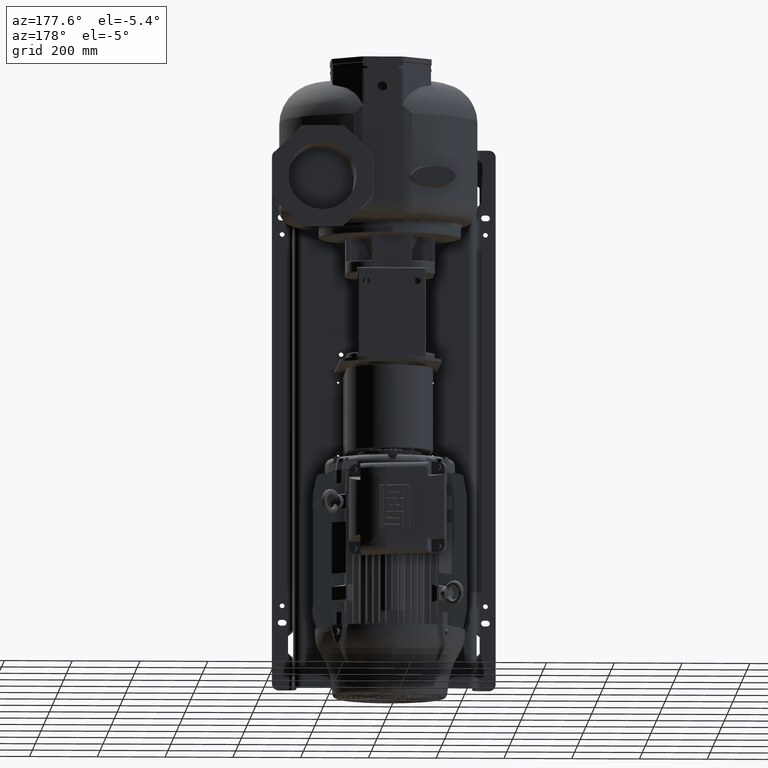
[diagram: clean part render]
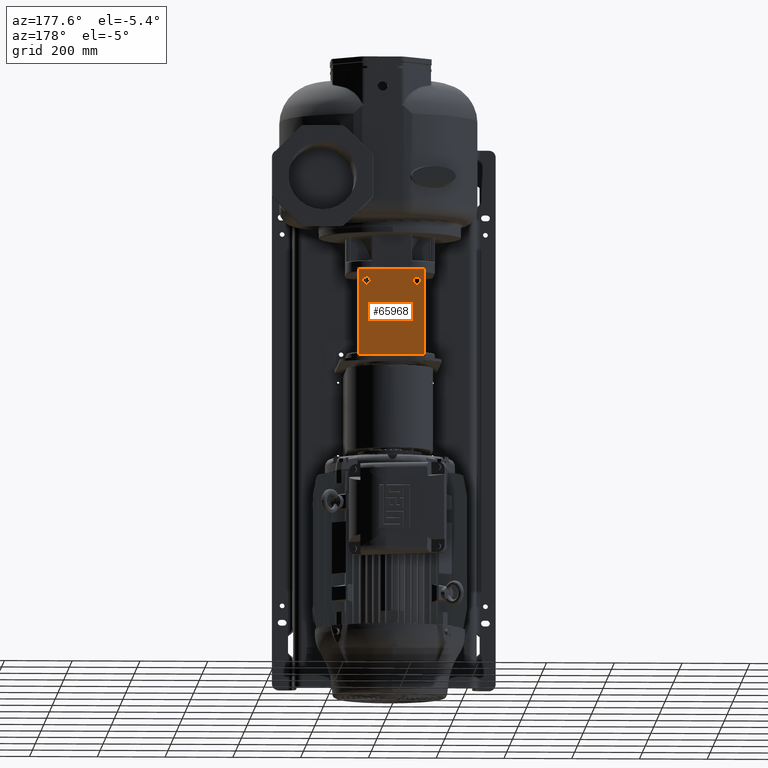
[diagram: same view with one face highlighted and labeled with its STEP entity id]
A machine part, auxiliary view. The second image highlights one B-rep face of the part: STEP entity #65968.
In plain terms, the highlighted planar face has unit normal (0, 1, 0).
Its self-contained STEP definition (entity closure, byte-faithful):
#30004=DIRECTION('',(-1.E0,0.E0,0.E0));
#30005=VECTOR('',#30004,1.94E2);
#30006=CARTESIAN_POINT('',(9.7E1,4.55E2,-5.57E2));
#30007=LINE('',#30006,#30005);
#30008=CARTESIAN_POINT('',(9.7E1,4.55E2,-3.02E2));
#30009=CARTESIAN_POINT('',(9.7E1,4.55E2,-3.87E2));
#30010=CARTESIAN_POINT('',(9.7E1,4.55E2,-4.72E2));
#30011=CARTESIAN_POINT('',(9.7E1,4.55E2,-5.57E2));
#30013=DIRECTION('',(1.E0,0.E0,0.E0));
#30014=VECTOR('',#30013,1.94E2);
#30015=CARTESIAN_POINT('',(-9.7E1,4.55E2,-3.02E2));
#30016=LINE('',#30015,#30014);
#30017=CARTESIAN_POINT('',(-9.7E1,4.55E2,-5.57E2));
#30018=CARTESIAN_POINT('',(-9.7E1,4.55E2,-4.72E2));
#30019=CARTESIAN_POINT('',(-9.7E1,4.55E2,-3.87E2));
#30020=CARTESIAN_POINT('',(-9.7E1,4.55E2,-3.02E2));
#30022=CARTESIAN_POINT('',(-7.5E1,4.55E2,-3.38E2));
#30023=DIRECTION('',(0.E0,1.E0,0.E0));
#30024=DIRECTION('',(0.E0,0.E0,-1.E0));
#30025=AXIS2_PLACEMENT_3D('',#30022,#30023,#30024);
#30027=CARTESIAN_POINT('',(-7.5E1,4.55E2,-3.38E2));
#30028=DIRECTION('',(0.E0,1.E0,0.E0));
#30029=DIRECTION('',(0.E0,0.E0,1.E0));
#30030=AXIS2_PLACEMENT_3D('',#30027,#30028,#30029);
#30032=CARTESIAN_POINT('',(7.5E1,4.55E2,-3.38E2));
#30033=DIRECTION('',(0.E0,1.E0,0.E0));
#30034=DIRECTION('',(0.E0,0.E0,-1.E0));
#30035=AXIS2_PLACEMENT_3D('',#30032,#30033,#30034);
#30037=CARTESIAN_POINT('',(7.5E1,4.55E2,-3.38E2));
#30038=DIRECTION('',(0.E0,1.E0,0.E0));
#30039=DIRECTION('',(0.E0,0.E0,1.E0));
#30040=AXIS2_PLACEMENT_3D('',#30037,#30038,#30039);
#33520=CARTESIAN_POINT('',(9.7E1,4.55E2,-5.57E2));
#33521=CARTESIAN_POINT('',(-9.7E1,4.55E2,-5.57E2));
#33522=VERTEX_POINT('',#33520);
#33523=VERTEX_POINT('',#33521);
#33528=CARTESIAN_POINT('',(-9.7E1,4.55E2,-3.02E2));
#33529=CARTESIAN_POINT('',(9.7E1,4.55E2,-3.02E2));
#33530=VERTEX_POINT('',#33528);
#33531=VERTEX_POINT('',#33529);
#33681=CARTESIAN_POINT('',(-7.5E1,4.55E2,-3.49E2));
#33682=CARTESIAN_POINT('',(-7.5E1,4.55E2,-3.27E2));
#33683=VERTEX_POINT('',#33681);
#33684=VERTEX_POINT('',#33682);
#33685=CARTESIAN_POINT('',(7.5E1,4.55E2,-3.49E2));
#33686=CARTESIAN_POINT('',(7.5E1,4.55E2,-3.27E2));
#33687=VERTEX_POINT('',#33685);
#33688=VERTEX_POINT('',#33686);
#65944=CARTESIAN_POINT('',(0.E0,4.55E2,-4.18E2));
#65945=DIRECTION('',(0.E0,1.E0,0.E0));
#65946=DIRECTION('',(0.E0,0.E0,-1.E0));
#65947=AXIS2_PLACEMENT_3D('',#65944,#65945,#65946);
#65948=PLANE('',#65947);
#65949=ORIENTED_EDGE('',*,*,#48295,.F.);
#65950=ORIENTED_EDGE('',*,*,#65936,.F.);
#65951=ORIENTED_EDGE('',*,*,#65835,.F.);
#65953=ORIENTED_EDGE('',*,*,#65952,.F.);
#65954=EDGE_LOOP('',(#65949,#65950,#65951,#65953));
#65955=FACE_OUTER_BOUND('',#65954,.F.);
#65957=ORIENTED_EDGE('',*,*,#65956,.T.);
#65959=ORIENTED_EDGE('',*,*,#65958,.T.);
#65960=EDGE_LOOP('',(#65957,#65959));
#65961=FACE_BOUND('',#65960,.F.);
#65963=ORIENTED_EDGE('',*,*,#65962,.T.);
#65965=ORIENTED_EDGE('',*,*,#65964,.T.);
#65966=EDGE_LOOP('',(#65963,#65965));
#65967=FACE_BOUND('',#65966,.F.);
#65968=ADVANCED_FACE('',(#65955,#65961,#65967),#65948,.T.);
#30012=B_SPLINE_CURVE_WITH_KNOTS('',3,(#30008,#30009,#30010,#30011),
.UNSPECIFIED.,.F.,.F.,(4,4),(0.E0,1.E0),.UNSPECIFIED.);
#30021=B_SPLINE_CURVE_WITH_KNOTS('',3,(#30017,#30018,#30019,#30020),
.UNSPECIFIED.,.F.,.F.,(4,4),(0.E0,1.E0),.UNSPECIFIED.);
#30026=CIRCLE('',#30025,1.1E1);
#30031=CIRCLE('',#30030,1.1E1);
#30036=CIRCLE('',#30035,1.1E1);
#30041=CIRCLE('',#30040,1.1E1);
#48295=EDGE_CURVE('',#33522,#33523,#30007,.T.);
#65835=EDGE_CURVE('',#33530,#33531,#30016,.T.);
#65936=EDGE_CURVE('',#33531,#33522,#30012,.T.);
#65952=EDGE_CURVE('',#33523,#33530,#30021,.T.);
#65956=EDGE_CURVE('',#33683,#33684,#30026,.T.);
#65958=EDGE_CURVE('',#33684,#33683,#30031,.T.);
#65962=EDGE_CURVE('',#33687,#33688,#30036,.T.);
#65964=EDGE_CURVE('',#33688,#33687,#30041,.T.);